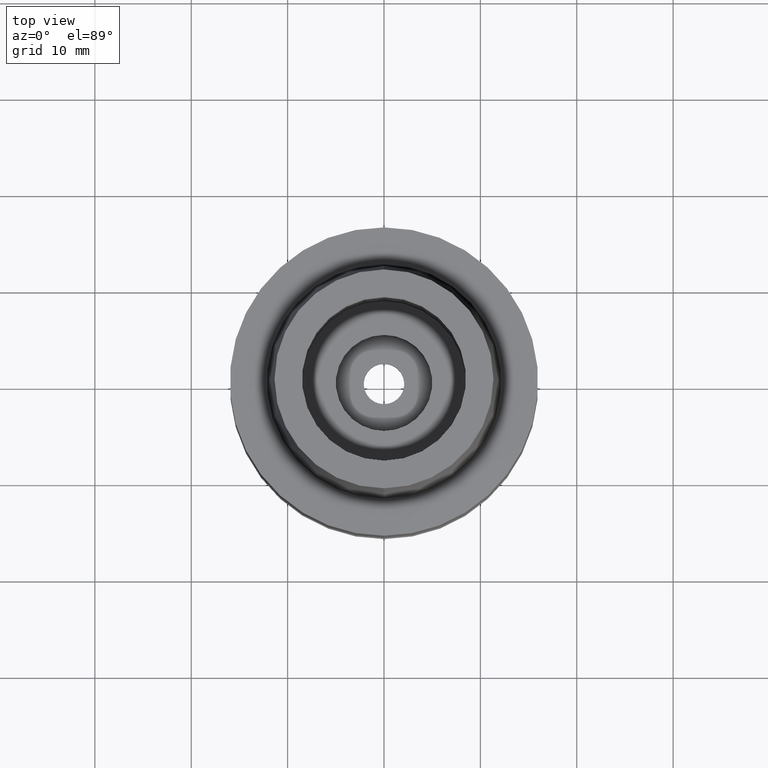
[diagram: clean part render]
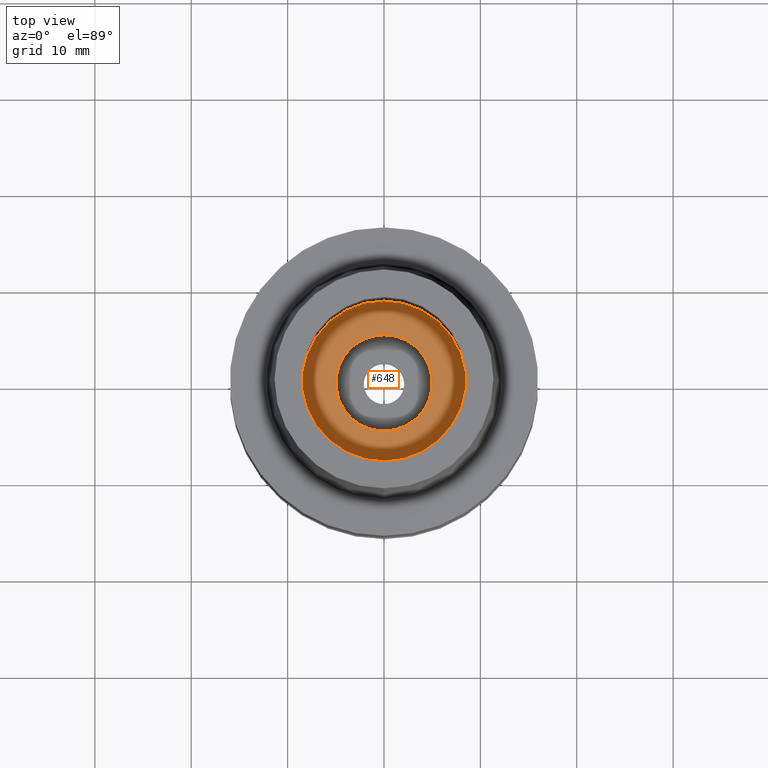
[diagram: same view with one face highlighted and labeled with its STEP entity id]
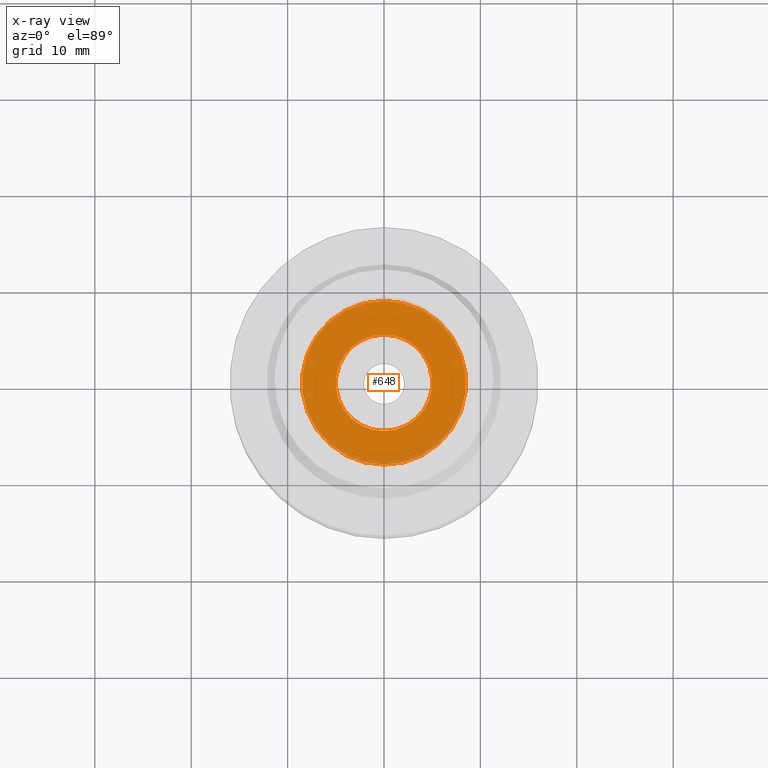
[diagram: x-ray of the same camera — body ghosted, the highlighted face saturated]
A machine part, top view. The second image highlights one B-rep face of the part: STEP entity #648.
The next image is the same camera in x-ray: the body ghosted, the highlighted face saturated — about 5% of this face is hidden behind the body in this view.
In plain terms, the highlighted planar face has unit normal (0, 0, -1).
Its self-contained STEP definition (entity closure, byte-faithful):
#101 = FACE_BOUND ( 'NONE', #1742, .T. ) ;
#121 = CARTESIAN_POINT ( 'NONE',  ( 0.0000000000000000000, 0.0000000000000000000, -7.950000000000000178 ) ) ;
#125 = DIRECTION ( 'NONE',  ( 0.0000000000000000000, 1.000000000000000000, 0.0000000000000000000 ) ) ;
#266 = EDGE_CURVE ( 'NONE', #2312, #2689, #1591, .T. ) ;
#385 = DIRECTION ( 'NONE',  ( 0.0000000000000000000, 1.000000000000000000, 0.0000000000000000000 ) ) ;
#473 = DIRECTION ( 'NONE',  ( 0.0000000000000000000, -1.000000000000000000, 0.0000000000000000000 ) ) ;
#511 = EDGE_LOOP ( 'NONE', ( #2593, #692 ) ) ;
#648 = ADVANCED_FACE ( 'NONE', ( #1367, #101 ), #944, .F. ) ;
#669 = AXIS2_PLACEMENT_3D ( 'NONE', #1724, #1092, #473 ) ;
#692 = ORIENTED_EDGE ( 'NONE', *, *, #1340, .F. ) ;
#944 = PLANE ( 'NONE',  #1501 ) ;
#970 = DIRECTION ( 'NONE',  ( 0.0000000000000000000, -1.000000000000000000, 0.0000000000000000000 ) ) ;
#1065 = EDGE_CURVE ( 'NONE', #1802, #1408, #1728, .T. ) ;
#1092 = DIRECTION ( 'NONE',  ( 0.0000000000000000000, 0.0000000000000000000, -1.000000000000000000 ) ) ;
#1142 = ORIENTED_EDGE ( 'NONE', *, *, #1769, .F. ) ;
#1165 = DIRECTION ( 'NONE',  ( 0.0000000000000000000, 0.0000000000000000000, -1.000000000000000000 ) ) ;
#1340 = EDGE_CURVE ( 'NONE', #2689, #2312, #2586, .T. ) ;
#1367 = FACE_OUTER_BOUND ( 'NONE', #511, .T. ) ;
#1408 = VERTEX_POINT ( 'NONE', #2525 ) ;
#1429 = CARTESIAN_POINT ( 'NONE',  ( 0.0000000000000000000, 0.0000000000000000000, -7.950000000000000178 ) ) ;
#1501 = AXIS2_PLACEMENT_3D ( 'NONE', #121, #2188, #970 ) ;
#1591 = CIRCLE ( 'NONE', #1766, 8.500000000000000000 ) ;
#1691 = CARTESIAN_POINT ( 'NONE',  ( 0.0000000000000000000, 0.0000000000000000000, -7.950000000000000178 ) ) ;
#1724 = CARTESIAN_POINT ( 'NONE',  ( 0.0000000000000000000, 0.0000000000000000000, -7.950000000000000178 ) ) ;
#1728 = CIRCLE ( 'NONE', #1949, 5.000000000000000000 ) ;
#1742 = EDGE_LOOP ( 'NONE', ( #2211, #1142 ) ) ;
#1766 = AXIS2_PLACEMENT_3D ( 'NONE', #2193, #1165, #125 ) ;
#1769 = EDGE_CURVE ( 'NONE', #1408, #1802, #1830, .T. ) ;
#1802 = VERTEX_POINT ( 'NONE', #1955 ) ;
#1830 = CIRCLE ( 'NONE', #2332, 5.000000000000000000 ) ;
#1949 = AXIS2_PLACEMENT_3D ( 'NONE', #1429, #2254, #385 ) ;
#1955 = CARTESIAN_POINT ( 'NONE',  ( 0.0000000000000000000, 5.000000000000000000, -7.950000000000000178 ) ) ;
#2188 = DIRECTION ( 'NONE',  ( 0.0000000000000000000, 0.0000000000000000000, -1.000000000000000000 ) ) ;
#2193 = CARTESIAN_POINT ( 'NONE',  ( 0.0000000000000000000, 0.0000000000000000000, -7.950000000000000178 ) ) ;
#2211 = ORIENTED_EDGE ( 'NONE', *, *, #1065, .F. ) ;
#2254 = DIRECTION ( 'NONE',  ( 0.0000000000000000000, 0.0000000000000000000, 1.000000000000000000 ) ) ;
#2312 = VERTEX_POINT ( 'NONE', #2381 ) ;
#2332 = AXIS2_PLACEMENT_3D ( 'NONE', #1691, #2555, #2364 ) ;
#2364 = DIRECTION ( 'NONE',  ( 0.0000000000000000000, -1.000000000000000000, 0.0000000000000000000 ) ) ;
#2381 = CARTESIAN_POINT ( 'NONE',  ( 0.0000000000000000000, 8.500000000000000000, -7.950000000000000178 ) ) ;
#2389 = CARTESIAN_POINT ( 'NONE',  ( 0.0000000000000000000, -8.500000000000000000, -7.950000000000000178 ) ) ;
#2525 = CARTESIAN_POINT ( 'NONE',  ( 0.0000000000000000000, -5.000000000000000000, -7.950000000000000178 ) ) ;
#2555 = DIRECTION ( 'NONE',  ( 0.0000000000000000000, 0.0000000000000000000, 1.000000000000000000 ) ) ;
#2586 = CIRCLE ( 'NONE', #669, 8.500000000000000000 ) ;
#2593 = ORIENTED_EDGE ( 'NONE', *, *, #266, .F. ) ;
#2689 = VERTEX_POINT ( 'NONE', #2389 ) ;